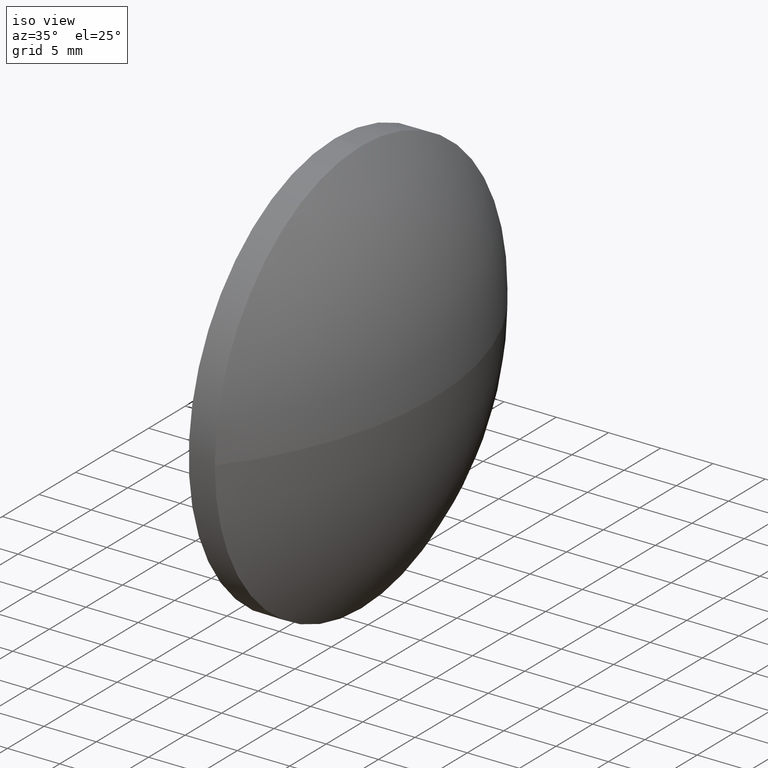
[diagram: clean part render]
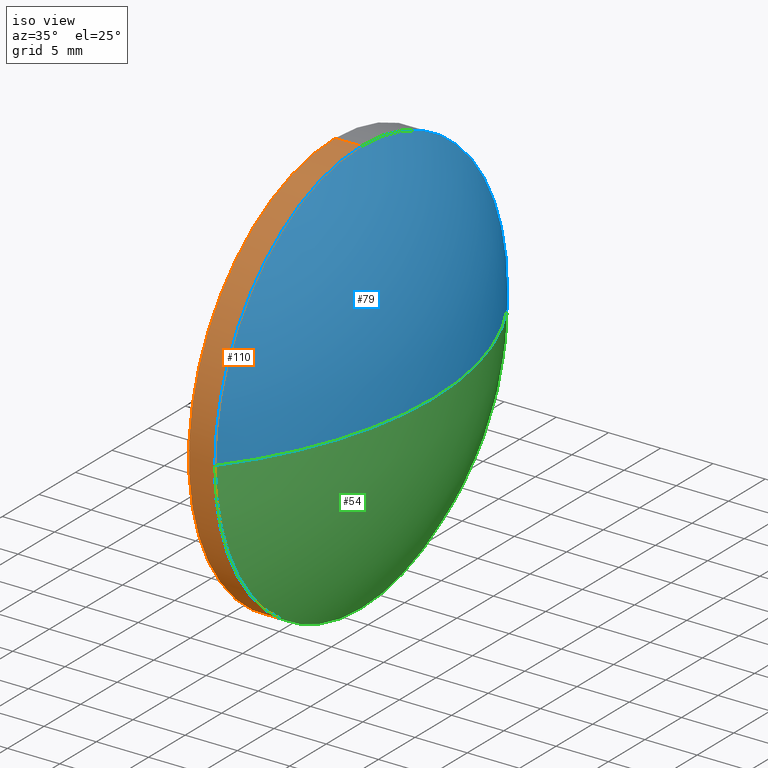
[diagram: same view with three faces highlighted in distinct colors, each labeled with its STEP entity id]
A machine part, iso view with three faces highlighted in distinct colors.
Their STEP definitions:

[orange] entity #110 — the highlighted cylindrical surface (partial cylindrical patch) has radius 20 mm, axis along (-1, -0, -0).
#8 = EDGE_CURVE ( 'NONE', #32, #38, #172, .T. ) ;
#9 = CARTESIAN_POINT ( 'NONE',  ( 498.8823540077719400, 40.65244250545561000, 19.99999999999999600 ) ) ;
#16 = DIRECTION ( 'NONE',  ( -1.000000000000000000, -0.0000000000000000000, -0.0000000000000000000 ) ) ;
#17 = CARTESIAN_POINT ( 'NONE',  ( 492.4174003967859800, 40.65244250545561000, -19.99999999999999600 ) ) ;
#21 = CIRCLE ( 'NONE', #98, 19.99999999999999600 ) ;
#23 = VECTOR ( 'NONE', #30, 1000.000000000000000 ) ;
#29 = CARTESIAN_POINT ( 'NONE',  ( 496.3823540077719400, 40.65244250545561000, -19.99999999999999600 ) ) ;
#30 = DIRECTION ( 'NONE',  ( -1.000000000000000000, -0.0000000000000000000, -0.0000000000000000000 ) ) ;
#32 = VERTEX_POINT ( 'NONE', #9 ) ;
#37 = VERTEX_POINT ( 'NONE', #179 ) ;
#38 = VERTEX_POINT ( 'NONE', #42 ) ;
#42 = CARTESIAN_POINT ( 'NONE',  ( 496.3823540077719400, 40.65244250545561000, 19.99999999999999600 ) ) ;
#44 = FACE_OUTER_BOUND ( 'NONE', #139, .T. ) ;
#48 = DIRECTION ( 'NONE',  ( -1.000000000000000000, -0.0000000000000000000, -0.0000000000000000000 ) ) ;
#49 = DIRECTION ( 'NONE',  ( 0.0000000000000000000, 0.0000000000000000000, 1.000000000000000000 ) ) ;
#50 = DIRECTION ( 'NONE',  ( -1.000000000000000000, -0.0000000000000000000, -0.0000000000000000000 ) ) ;
#56 = VERTEX_POINT ( 'NONE', #140 ) ;
#61 = AXIS2_PLACEMENT_3D ( 'NONE', #129, #48, #119 ) ;
#64 = DIRECTION ( 'NONE',  ( -1.000000000000000000, -0.0000000000000000000, -0.0000000000000000000 ) ) ;
#66 = VECTOR ( 'NONE', #94, 1000.000000000000000 ) ;
#69 = ORIENTED_EDGE ( 'NONE', *, *, #159, .T. ) ;
#73 = CARTESIAN_POINT ( 'NONE',  ( 492.4174003967859800, 40.65244250545561000, 19.99999999999999600 ) ) ;
#75 = AXIS2_PLACEMENT_3D ( 'NONE', #156, #50, #49 ) ;
#94 = DIRECTION ( 'NONE',  ( -1.000000000000000000, -0.0000000000000000000, -0.0000000000000000000 ) ) ;
#96 = AXIS2_PLACEMENT_3D ( 'NONE', #117, #16, #102 ) ;
#98 = AXIS2_PLACEMENT_3D ( 'NONE', #157, #64, #120 ) ;
#101 = ORIENTED_EDGE ( 'NONE', *, *, #8, .T. ) ;
#102 = DIRECTION ( 'NONE',  ( 0.0000000000000000000, 0.0000000000000000000, 1.000000000000000000 ) ) ;
#110 = ADVANCED_FACE ( 'NONE', ( #44 ), #146, .T. ) ;
#117 = CARTESIAN_POINT ( 'NONE',  ( 498.8823540077719400, 40.65244250545561000, 0.0000000000000000000 ) ) ;
#119 = DIRECTION ( 'NONE',  ( 0.0000000000000000000, 0.0000000000000000000, 1.000000000000000000 ) ) ;
#120 = DIRECTION ( 'NONE',  ( 0.0000000000000000000, 0.0000000000000000000, 1.000000000000000000 ) ) ;
#129 = CARTESIAN_POINT ( 'NONE',  ( 498.8823540077719400, 40.65244250545561000, 0.0000000000000000000 ) ) ;
#137 = EDGE_CURVE ( 'NONE', #37, #56, #168, .T. ) ;
#139 = EDGE_LOOP ( 'NONE', ( #158, #181, #69, #101, #150 ) ) ;
#140 = CARTESIAN_POINT ( 'NONE',  ( 498.8823540077719400, 20.65244250545559600, -2.449293598294704100E-015 ) ) ;
#146 = CYLINDRICAL_SURFACE ( 'NONE', #75, 19.99999999999999600 ) ;
#150 = ORIENTED_EDGE ( 'NONE', *, *, #165, .F. ) ;
#156 = CARTESIAN_POINT ( 'NONE',  ( 492.4174003967859800, 40.65244250545561000, 0.0000000000000000000 ) ) ;
#157 = CARTESIAN_POINT ( 'NONE',  ( 496.3823540077719400, 40.65244250545561000, 0.0000000000000000000 ) ) ;
#158 = ORIENTED_EDGE ( 'NONE', *, *, #176, .F. ) ;
#159 = EDGE_CURVE ( 'NONE', #56, #32, #178, .T. ) ;
#163 = LINE ( 'NONE', #17, #23 ) ;
#165 = EDGE_CURVE ( 'NONE', #186, #38, #21, .T. ) ;
#168 = CIRCLE ( 'NONE', #96, 19.99999999999999600 ) ;
#172 = LINE ( 'NONE', #73, #66 ) ;
#176 = EDGE_CURVE ( 'NONE', #37, #186, #163, .T. ) ;
#178 = CIRCLE ( 'NONE', #61, 19.99999999999999600 ) ;
#179 = CARTESIAN_POINT ( 'NONE',  ( 498.8823540077719400, 40.65244250545561000, -19.99999999999999600 ) ) ;
#181 = ORIENTED_EDGE ( 'NONE', *, *, #137, .T. ) ;
#186 = VERTEX_POINT ( 'NONE', #29 ) ;

[blue] entity #79 — the highlighted spherical surface has radius 32.5098 mm.
#4 = VERTEX_POINT ( 'NONE', #123 ) ;
#6 = EDGE_LOOP ( 'NONE', ( #118, #11, #40, #59 ) ) ;
#7 = CARTESIAN_POINT ( 'NONE',  ( 505.7623540077719300, 40.65244250545557500, 0.0000000000000000000 ) ) ;
#9 = CARTESIAN_POINT ( 'NONE',  ( 498.8823540077719400, 40.65244250545561000, 19.99999999999999600 ) ) ;
#11 = ORIENTED_EDGE ( 'NONE', *, *, #147, .T. ) ;
#13 = AXIS2_PLACEMENT_3D ( 'NONE', #87, #46, #161 ) ;
#19 = EDGE_CURVE ( 'NONE', #32, #4, #132, .T. ) ;
#26 = DIRECTION ( 'NONE',  ( 0.0000000000000000000, 0.0000000000000000000, 1.000000000000000000 ) ) ;
#31 = DIRECTION ( 'NONE',  ( -0.0000000000000000000, 0.0000000000000000000, 1.000000000000000000 ) ) ;
#32 = VERTEX_POINT ( 'NONE', #9 ) ;
#35 = FACE_OUTER_BOUND ( 'NONE', #6, .T. ) ;
#40 = ORIENTED_EDGE ( 'NONE', *, *, #19, .F. ) ;
#41 = AXIS2_PLACEMENT_3D ( 'NONE', #153, #95, #26 ) ;
#46 = DIRECTION ( 'NONE',  ( 0.0000000000000000000, 1.224646799147353200E-016, -1.000000000000000000 ) ) ;
#48 = DIRECTION ( 'NONE',  ( -1.000000000000000000, -0.0000000000000000000, -0.0000000000000000000 ) ) ;
#56 = VERTEX_POINT ( 'NONE', #140 ) ;
#59 = ORIENTED_EDGE ( 'NONE', *, *, #159, .F. ) ;
#61 = AXIS2_PLACEMENT_3D ( 'NONE', #129, #48, #119 ) ;
#76 = CIRCLE ( 'NONE', #13, 32.50976744186041900 ) ;
#79 = ADVANCED_FACE ( 'NONE', ( #35 ), #93, .T. ) ;
#82 = AXIS2_PLACEMENT_3D ( 'NONE', #185, #31, #144 ) ;
#87 = CARTESIAN_POINT ( 'NONE',  ( 473.2525865659115400, 40.65244250545557500, 0.0000000000000000000 ) ) ;
#88 = CIRCLE ( 'NONE', #82, 32.50976744186040400 ) ;
#91 = EDGE_CURVE ( 'NONE', #108, #56, #76, .T. ) ;
#93 = SPHERICAL_SURFACE ( 'NONE', #138, 32.50976744186041900 ) ;
#95 = DIRECTION ( 'NONE',  ( -1.000000000000000000, -0.0000000000000000000, -0.0000000000000000000 ) ) ;
#108 = VERTEX_POINT ( 'NONE', #7 ) ;
#116 = DIRECTION ( 'NONE',  ( -0.0000000000000000000, 0.0000000000000000000, -1.000000000000000000 ) ) ;
#118 = ORIENTED_EDGE ( 'NONE', *, *, #91, .F. ) ;
#119 = DIRECTION ( 'NONE',  ( 0.0000000000000000000, 0.0000000000000000000, 1.000000000000000000 ) ) ;
#123 = CARTESIAN_POINT ( 'NONE',  ( 498.8823540077719400, 60.65244250545559600, 0.0000000000000000000 ) ) ;
#129 = CARTESIAN_POINT ( 'NONE',  ( 498.8823540077719400, 40.65244250545561000, 0.0000000000000000000 ) ) ;
#132 = CIRCLE ( 'NONE', #41, 19.99999999999999600 ) ;
#138 = AXIS2_PLACEMENT_3D ( 'NONE', #180, #116, #171 ) ;
#140 = CARTESIAN_POINT ( 'NONE',  ( 498.8823540077719400, 20.65244250545559600, -2.449293598294704100E-015 ) ) ;
#144 = DIRECTION ( 'NONE',  ( 1.000000000000000000, 0.0000000000000000000, 0.0000000000000000000 ) ) ;
#147 = EDGE_CURVE ( 'NONE', #108, #4, #88, .T. ) ;
#153 = CARTESIAN_POINT ( 'NONE',  ( 498.8823540077719400, 40.65244250545561000, 0.0000000000000000000 ) ) ;
#159 = EDGE_CURVE ( 'NONE', #56, #32, #178, .T. ) ;
#161 = DIRECTION ( 'NONE',  ( 0.0000000000000000000, 1.000000000000000000, 1.224646799147353200E-016 ) ) ;
#171 = DIRECTION ( 'NONE',  ( 0.0000000000000000000, 1.000000000000000000, 0.0000000000000000000 ) ) ;
#178 = CIRCLE ( 'NONE', #61, 19.99999999999999600 ) ;
#180 = CARTESIAN_POINT ( 'NONE',  ( 473.2525865659115400, 40.65244250545557500, 0.0000000000000000000 ) ) ;
#185 = CARTESIAN_POINT ( 'NONE',  ( 473.2525865659115400, 40.65244250545557500, 0.0000000000000000000 ) ) ;

[green] entity #54 — the highlighted spherical surface has radius 32.5098 mm.
#2 = AXIS2_PLACEMENT_3D ( 'NONE', #183, #15, #97 ) ;
#4 = VERTEX_POINT ( 'NONE', #123 ) ;
#7 = CARTESIAN_POINT ( 'NONE',  ( 505.7623540077719300, 40.65244250545557500, 0.0000000000000000000 ) ) ;
#12 = ORIENTED_EDGE ( 'NONE', *, *, #147, .F. ) ;
#13 = AXIS2_PLACEMENT_3D ( 'NONE', #87, #46, #161 ) ;
#15 = DIRECTION ( 'NONE',  ( -1.000000000000000000, -0.0000000000000000000, -0.0000000000000000000 ) ) ;
#16 = DIRECTION ( 'NONE',  ( -1.000000000000000000, -0.0000000000000000000, -0.0000000000000000000 ) ) ;
#25 = FACE_OUTER_BOUND ( 'NONE', #80, .T. ) ;
#27 = AXIS2_PLACEMENT_3D ( 'NONE', #112, #114, #58 ) ;
#31 = DIRECTION ( 'NONE',  ( -0.0000000000000000000, 0.0000000000000000000, 1.000000000000000000 ) ) ;
#37 = VERTEX_POINT ( 'NONE', #179 ) ;
#46 = DIRECTION ( 'NONE',  ( 0.0000000000000000000, 1.224646799147353200E-016, -1.000000000000000000 ) ) ;
#54 = ADVANCED_FACE ( 'NONE', ( #25 ), #164, .T. ) ;
#56 = VERTEX_POINT ( 'NONE', #140 ) ;
#58 = DIRECTION ( 'NONE',  ( 0.0000000000000000000, 1.000000000000000000, 0.0000000000000000000 ) ) ;
#62 = CIRCLE ( 'NONE', #2, 19.99999999999999600 ) ;
#76 = CIRCLE ( 'NONE', #13, 32.50976744186041900 ) ;
#80 = EDGE_LOOP ( 'NONE', ( #12, #122, #115, #143 ) ) ;
#82 = AXIS2_PLACEMENT_3D ( 'NONE', #185, #31, #144 ) ;
#86 = EDGE_CURVE ( 'NONE', #4, #37, #62, .T. ) ;
#87 = CARTESIAN_POINT ( 'NONE',  ( 473.2525865659115400, 40.65244250545557500, 0.0000000000000000000 ) ) ;
#88 = CIRCLE ( 'NONE', #82, 32.50976744186040400 ) ;
#91 = EDGE_CURVE ( 'NONE', #108, #56, #76, .T. ) ;
#96 = AXIS2_PLACEMENT_3D ( 'NONE', #117, #16, #102 ) ;
#97 = DIRECTION ( 'NONE',  ( 0.0000000000000000000, 0.0000000000000000000, 1.000000000000000000 ) ) ;
#102 = DIRECTION ( 'NONE',  ( 0.0000000000000000000, 0.0000000000000000000, 1.000000000000000000 ) ) ;
#108 = VERTEX_POINT ( 'NONE', #7 ) ;
#112 = CARTESIAN_POINT ( 'NONE',  ( 473.2525865659115400, 40.65244250545557500, 0.0000000000000000000 ) ) ;
#114 = DIRECTION ( 'NONE',  ( -0.0000000000000000000, 0.0000000000000000000, -1.000000000000000000 ) ) ;
#115 = ORIENTED_EDGE ( 'NONE', *, *, #137, .F. ) ;
#117 = CARTESIAN_POINT ( 'NONE',  ( 498.8823540077719400, 40.65244250545561000, 0.0000000000000000000 ) ) ;
#122 = ORIENTED_EDGE ( 'NONE', *, *, #91, .T. ) ;
#123 = CARTESIAN_POINT ( 'NONE',  ( 498.8823540077719400, 60.65244250545559600, 0.0000000000000000000 ) ) ;
#137 = EDGE_CURVE ( 'NONE', #37, #56, #168, .T. ) ;
#140 = CARTESIAN_POINT ( 'NONE',  ( 498.8823540077719400, 20.65244250545559600, -2.449293598294704100E-015 ) ) ;
#143 = ORIENTED_EDGE ( 'NONE', *, *, #86, .F. ) ;
#144 = DIRECTION ( 'NONE',  ( 1.000000000000000000, 0.0000000000000000000, 0.0000000000000000000 ) ) ;
#147 = EDGE_CURVE ( 'NONE', #108, #4, #88, .T. ) ;
#161 = DIRECTION ( 'NONE',  ( 0.0000000000000000000, 1.000000000000000000, 1.224646799147353200E-016 ) ) ;
#164 = SPHERICAL_SURFACE ( 'NONE', #27, 32.50976744186041900 ) ;
#168 = CIRCLE ( 'NONE', #96, 19.99999999999999600 ) ;
#179 = CARTESIAN_POINT ( 'NONE',  ( 498.8823540077719400, 40.65244250545561000, -19.99999999999999600 ) ) ;
#183 = CARTESIAN_POINT ( 'NONE',  ( 498.8823540077719400, 40.65244250545561000, 0.0000000000000000000 ) ) ;
#185 = CARTESIAN_POINT ( 'NONE',  ( 473.2525865659115400, 40.65244250545557500, 0.0000000000000000000 ) ) ;